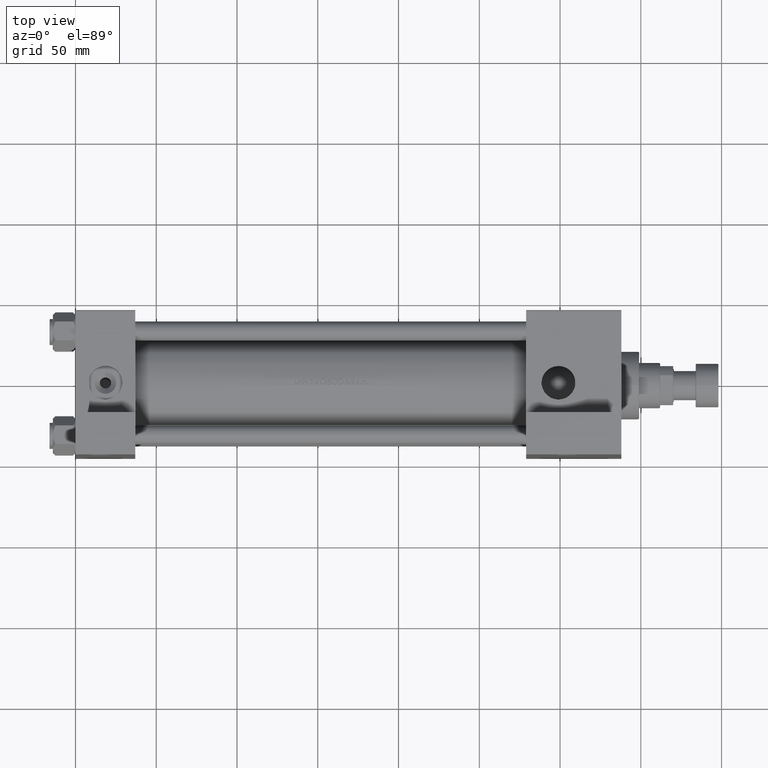
[diagram: clean part render]
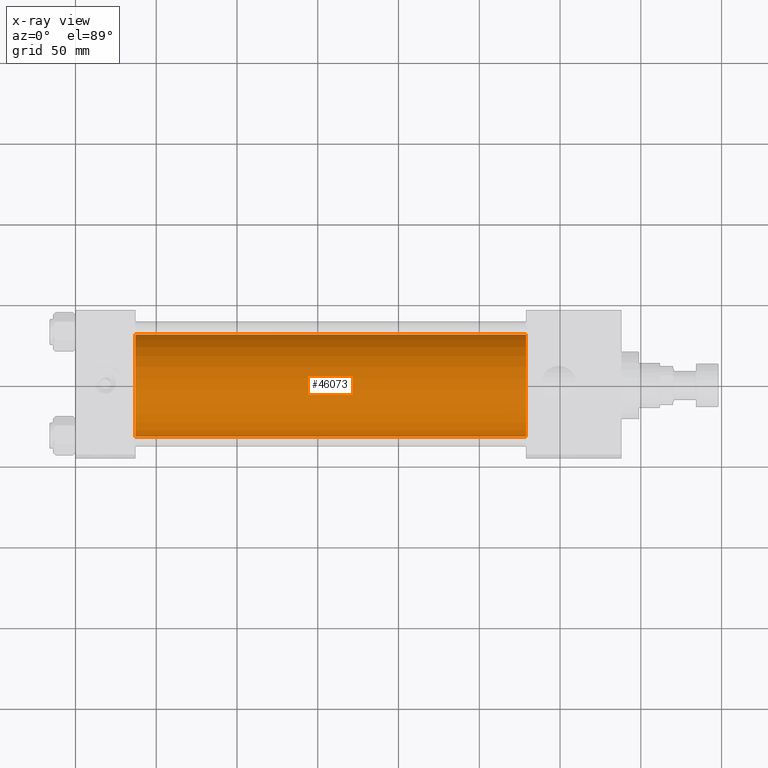
[diagram: x-ray — body ghosted, one internal face saturated and labeled with its STEP entity id]
A machine part, top view, then the same camera in x-ray: the body is ghosted and one INTERNAL B-rep face — a face not visible from any outside direction — is saturated and labeled: STEP entity #46073.
In plain terms, the highlighted cylindrical surface (partial cylindrical patch) has radius 31.5 mm, axis along (-1, -0, 0).
Its self-contained STEP definition (entity closure, byte-faithful):
#671 = CARTESIAN_POINT ( 'NONE',  ( 278.9999999999999432, 0.000000000000000000, 30.49999999999999289 ) ) ;
#945 = CARTESIAN_POINT ( 'NONE',  ( 278.9999999999999432, 3.857637417314162689E-15, -32.50000000000000711 ) ) ;
#2695 = DIRECTION ( 'NONE',  ( 0.000000000000000000, 0.000000000000000000, 1.000000000000000000 ) ) ;
#3191 = DIRECTION ( 'NONE',  ( 0.000000000000000000, 0.000000000000000000, -1.000000000000000000 ) ) ;
#6990 = CARTESIAN_POINT ( 'NONE',  ( 278.9999999999999432, 0.000000000000000000, -1.000000000000007772 ) ) ;
#7291 = DIRECTION ( 'NONE',  ( -1.000000000000000000, -0.000000000000000000, -0.000000000000000000 ) ) ;
#8814 = DIRECTION ( 'NONE',  ( -1.000000000000000000, -0.000000000000000000, -0.000000000000000000 ) ) ;
#10379 = AXIS2_PLACEMENT_3D ( 'NONE', #42529, #23288, #19490 ) ;
#11047 = DIRECTION ( 'NONE',  ( -1.000000000000000000, -0.000000000000000000, -0.000000000000000000 ) ) ;
#12357 = LINE ( 'NONE', #945, #48400 ) ;
#14110 = FACE_OUTER_BOUND ( 'NONE', #21304, .T. ) ;
#14392 = CARTESIAN_POINT ( 'NONE',  ( 37.00000000000000000, 3.857637417314162689E-15, -32.50000000000000711 ) ) ;
#15185 = VERTEX_POINT ( 'NONE', #48193 ) ;
#15653 = LINE ( 'NONE', #671, #33500 ) ;
#15761 = ORIENTED_EDGE ( 'NONE', *, *, #41481, .T. ) ;
#18713 = AXIS2_PLACEMENT_3D ( 'NONE', #41966, #29852, #3191 ) ;
#19490 = DIRECTION ( 'NONE',  ( 0.000000000000000000, 0.000000000000000000, -1.000000000000000000 ) ) ;
#20058 = EDGE_CURVE ( 'NONE', #34143, #15185, #15653, .T. ) ;
#20626 = ORIENTED_EDGE ( 'NONE', *, *, #34213, .T. ) ;
#21304 = EDGE_LOOP ( 'NONE', ( #15761, #20626, #24080, #35781 ) ) ;
#23288 = DIRECTION ( 'NONE',  ( 1.000000000000000000, 0.000000000000000000, 0.000000000000000000 ) ) ;
#23735 = AXIS2_PLACEMENT_3D ( 'NONE', #6990, #11047, #2695 ) ;
#24080 = ORIENTED_EDGE ( 'NONE', *, *, #30432, .F. ) ;
#28064 = VERTEX_POINT ( 'NONE', #14392 ) ;
#28447 = CIRCLE ( 'NONE', #18713, 31.50000000000000000 ) ;
#29852 = DIRECTION ( 'NONE',  ( 1.000000000000000000, 0.000000000000000000, 0.000000000000000000 ) ) ;
#30432 = EDGE_CURVE ( 'NONE', #15185, #28064, #32257, .T. ) ;
#32257 = CIRCLE ( 'NONE', #10379, 31.50000000000000000 ) ;
#33500 = VECTOR ( 'NONE', #7291, 1000.000000000000000 ) ;
#34143 = VERTEX_POINT ( 'NONE', #34959 ) ;
#34213 = EDGE_CURVE ( 'NONE', #42511, #28064, #12357, .T. ) ;
#34959 = CARTESIAN_POINT ( 'NONE',  ( 278.9999999999999432, 0.000000000000000000, 30.49999999999999289 ) ) ;
#35781 = ORIENTED_EDGE ( 'NONE', *, *, #20058, .F. ) ;
#37436 = CYLINDRICAL_SURFACE ( 'NONE', #23735, 31.50000000000000000 ) ;
#41481 = EDGE_CURVE ( 'NONE', #34143, #42511, #28447, .T. ) ;
#41966 = CARTESIAN_POINT ( 'NONE',  ( 278.9999999999999432, 0.000000000000000000, -1.000000000000007772 ) ) ;
#42511 = VERTEX_POINT ( 'NONE', #49033 ) ;
#42529 = CARTESIAN_POINT ( 'NONE',  ( 37.00000000000000000, 0.000000000000000000, -1.000000000000007772 ) ) ;
#46073 = ADVANCED_FACE ( 'NONE', ( #14110 ), #37436, .F. ) ;
#48193 = CARTESIAN_POINT ( 'NONE',  ( 37.00000000000000000, 0.000000000000000000, 30.49999999999999289 ) ) ;
#48400 = VECTOR ( 'NONE', #8814, 1000.000000000000000 ) ;
#49033 = CARTESIAN_POINT ( 'NONE',  ( 278.9999999999999432, 3.857637417314162689E-15, -32.50000000000000711 ) ) ;